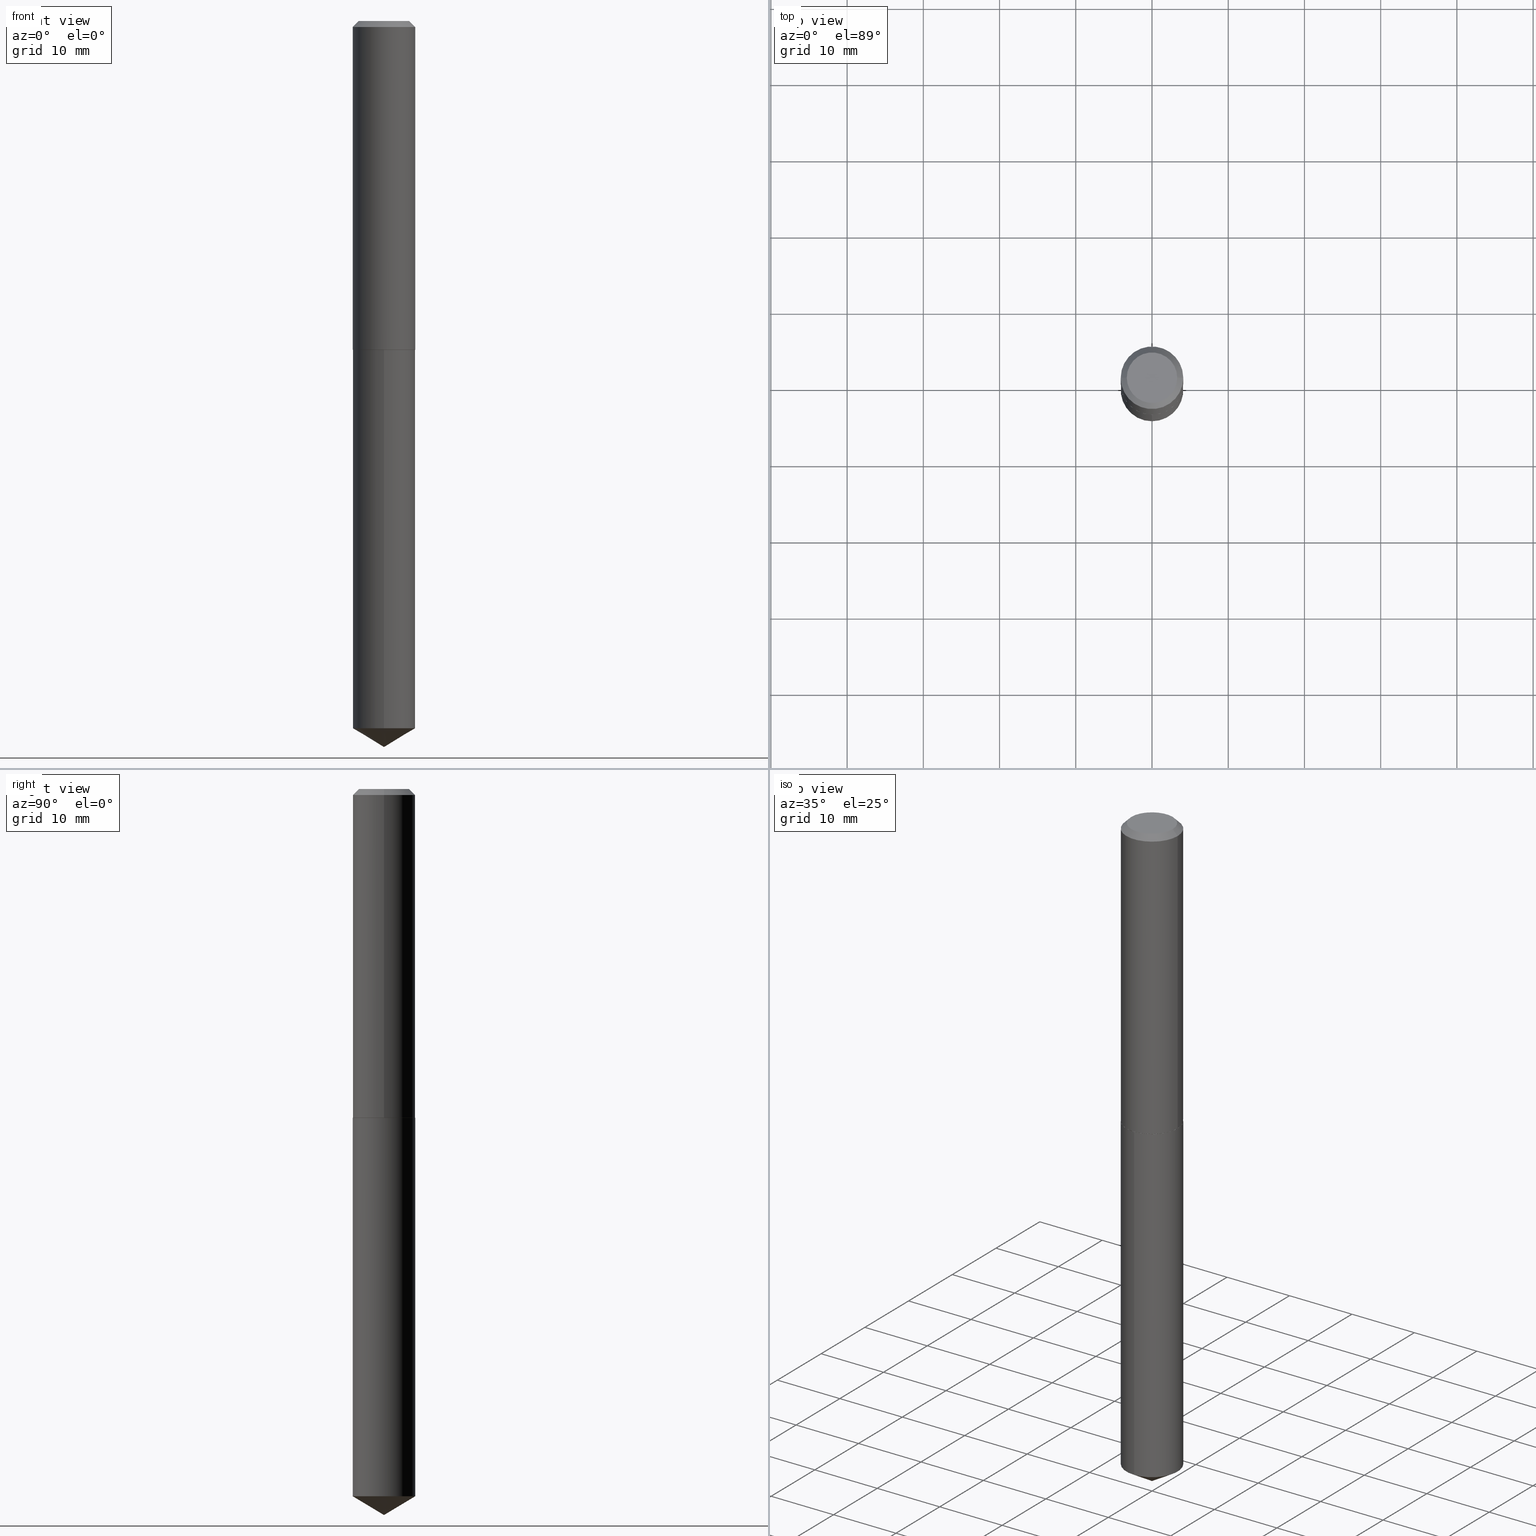
[diagram: canonical four-view strip — front | top / right | iso, engineering-drawing reading convention]
A machine part, canonical four-view strip (front | top / right | iso — engineering-drawing reading convention). The complete STEP part file that produces these views, byte-faithful:
ISO-10303-21;
HEADER;
FILE_DESCRIPTION (( 'STEP AP203' ),
    '1' );
FILE_NAME ('57191.STEP',
    '2024-04-22T23:42:38',
    ( '' ),
    ( '' ),
    'SwSTEP 2.0',
    'SolidWorks 2023',
    '' );
FILE_SCHEMA (( 'CONFIG_CONTROL_DESIGN' ));
ENDSEC;

DATA;
#1 = SHAPE_DEFINITION_REPRESENTATION ( #279, #150 ) ;
#2 = ORIENTED_EDGE ( 'NONE', *, *, #64, .F. ) ;
#3 = ORIENTED_EDGE ( 'NONE', *, *, #184, .F. ) ;
#4 = MANIFOLD_SOLID_BREP ( 'Body-Move/Copy2[2]', #203 ) ;
#5 = AXIS2_PLACEMENT_3D ( 'NONE', #255, #281, #40 ) ;
#6 = APPROVAL_DATE_TIME ( #209, #298 ) ;
#7 = AXIS2_PLACEMENT_3D ( 'NONE', #70, #312, #157 ) ;
#8 = ORIENTED_EDGE ( 'NONE', *, *, #114, .F. ) ;
#9 = FACE_OUTER_BOUND ( 'NONE', #304, .T. ) ;
#10 = CARTESIAN_POINT ( 'NONE',  ( -0.1615000000000001157, 1.147526518252562622E-15, -7.944080170761677510E-30 ) ) ;
#11 = DIRECTION ( 'NONE',  ( -2.445468806185136877E-29, 3.491481338843145188E-15, 1.000000000000000000 ) ) ;
#12 = VECTOR ( 'NONE', #191, 39.37007874015748143 ) ;
#13 = LINE ( 'NONE', #129, #115 ) ;
#14 = VERTEX_POINT ( 'NONE', #354 ) ;
#15 = DIRECTION ( 'NONE',  ( -2.445519026843938507E-29, 3.491409420001358985E-15, 1.000000000000000000 ) ) ;
#16 = DIRECTION ( 'NONE',  ( -6.982962677686266711E-15, -1.000000000000000000, 3.383093490605898500E-15 ) ) ;
#17 = CIRCLE ( 'NONE', #318, 0.1610000000000004206 ) ;
#18 = CIRCLE ( 'NONE', #23, 0.1615000000000000047 ) ;
#19 = DIRECTION ( 'NONE',  ( -2.445468806185136597E-29, 3.491481338843145583E-15, 1.000000000000000000 ) ) ;
#20 = DIRECTION ( 'NONE',  ( -2.445468806185136597E-29, 3.491481338843145583E-15, 1.000000000000000000 ) ) ;
#21 = APPROVAL ( #390, 'UNSPECIFIED' ) ;
#22 = ORIENTED_EDGE ( 'NONE', *, *, #34, .T. ) ;
#23 = AXIS2_PLACEMENT_3D ( 'NONE', #154, #37, #278 ) ;
#24 = DIRECTION ( 'NONE',  ( 2.438088387897960049E-29, -3.491481338843145188E-15, -1.000000000000000000 ) ) ;
#25 = CARTESIAN_POINT ( 'NONE',  ( 4.151183298499269552E-29, -5.926789572686240485E-15, -1.697500000000000231 ) ) ;
#26 = PERSON_AND_ORGANIZATION ( #267, #41 ) ;
#27 = CALENDAR_DATE ( 2024, 22, 4 ) ;
#28 = CC_DESIGN_APPROVAL ( #298, ( #366 ) ) ;
#29 = CC_DESIGN_SECURITY_CLASSIFICATION ( #206, ( #332 ) ) ;
#30 = CALENDAR_DATE ( 2024, 22, 4 ) ;
#31 = APPLICATION_PROTOCOL_DEFINITION ( 'international standard', 'config_control_design', 1994, #58 ) ;
#32 = EDGE_LOOP ( 'NONE', ( #96, #229, #189, #346 ) ) ;
#33 = ORIENTED_EDGE ( 'NONE', *, *, #216, .T. ) ;
#34 = EDGE_CURVE ( 'NONE', #14, #119, #177, .T. ) ;
#35 = AXIS2_PLACEMENT_3D ( 'NONE', #328, #377, #260 ) ;
#36 = ORIENTED_EDGE ( 'NONE', *, *, #363, .T. ) ;
#37 = DIRECTION ( 'NONE',  ( -2.445468806185136597E-29, 3.491481338843145583E-15, 1.000000000000000000 ) ) ;
#38 = EDGE_CURVE ( 'NONE', #198, #236, #169, .T. ) ;
#39 = FACE_OUTER_BOUND ( 'NONE', #160, .T. ) ;
#40 = DIRECTION ( 'NONE',  ( -6.982962677686269077E-15, -1.000000000000000000, 3.468864327941552799E-15 ) ) ;
#41 = ORGANIZATION ( 'UNSPECIFIED', 'UNSPECIFIED', '' ) ;
#42 = DIRECTION ( 'NONE',  ( -0.7071067811865454633, 2.468850131082235367E-15, -0.7071067811865495711 ) ) ;
#43 = EDGE_CURVE ( 'NONE', #119, #14, #256, .T. ) ;
#44 = ORIENTED_EDGE ( 'NONE', *, *, #43, .F. ) ;
#45 = LINE ( 'NONE', #159, #67 ) ;
#46 = EDGE_CURVE ( 'NONE', #14, #103, #117, .T. ) ;
#47 = CARTESIAN_POINT ( 'NONE',  ( 8.933300379661556550E-29, -1.275410459949947591E-14, -3.652961010027050204 ) ) ;
#48 = CONICAL_SURFACE ( 'NONE', #232, 0.1615000000000001990, 0.7853981633976190313 ) ;
#49 = FACE_OUTER_BOUND ( 'NONE', #231, .T. ) ;
#50 = DIRECTION ( 'NONE',  ( -2.445468806185136597E-29, 3.491481338843145583E-15, 1.000000000000000000 ) ) ;
#51 = EDGE_LOOP ( 'NONE', ( #122, #22 ) ) ;
#52 = CYLINDRICAL_SURFACE ( 'NONE', #313, 0.1615000000000001157 ) ;
#53 = CIRCLE ( 'NONE', #245, 0.1615000000000000047 ) ;
#54 = FACE_OUTER_BOUND ( 'NONE', #137, .T. ) ;
#55 = APPROVAL_PERSON_ORGANIZATION ( #26, #139, #268 ) ;
#56 = COORDINATED_UNIVERSAL_TIME_OFFSET ( 5, 0, .BEHIND. ) ;
#57 = ADVANCED_FACE ( 'NONE', ( #54 ), #48, .T. ) ;
#58 = APPLICATION_CONTEXT ( 'configuration controlled 3d designs of mechanical parts and assemblies' ) ;
#59 = DATE_AND_TIME ( #30, #144 ) ;
#60 = PERSON_AND_ORGANIZATION ( #267, #41 ) ;
#61 =( NAMED_UNIT ( * ) PLANE_ANGLE_UNIT ( ) SI_UNIT ( $, .RADIAN. ) );
#62 = CARTESIAN_POINT ( 'NONE',  ( 4.152406032902361233E-29, -5.928535313355660411E-15, -1.697999999999999732 ) ) ;
#63 = DATE_AND_TIME ( #297, #80 ) ;
#64 = EDGE_CURVE ( 'NONE', #179, #234, #17, .T. ) ;
#65 = VERTEX_POINT ( 'NONE', #185 ) ;
#66 = DIRECTION ( 'NONE',  ( -5.985567269335963368E-15, -0.8571673007021132218, 0.5150380749100526012 ) ) ;
#67 = VECTOR ( 'NONE', #316, 39.37007874015748143 ) ;
#68 = DIRECTION ( 'NONE',  ( -2.445519026843938507E-29, 3.491409420001358590E-15, 1.000000000000000000 ) ) ;
#69 = DIRECTION ( 'NONE',  ( 6.982962677686265922E-15, 1.000000000000000000, -3.491409420001358590E-15 ) ) ;
#70 = CARTESIAN_POINT ( 'NONE',  ( 4.152406032902361793E-29, -5.928535313355661989E-15, -1.697999999999999954 ) ) ;
#71 = ADVANCED_FACE ( 'NONE', ( #125 ), #249, .T. ) ;
#72 = CYLINDRICAL_SURFACE ( 'NONE', #301, 0.1615000000000000047 ) ;
#73 = DIMENSIONAL_EXPONENTS ( 1.000000000000000000, 0.000000000000000000, 0.000000000000000000, 0.000000000000000000, 0.000000000000000000, 0.000000000000000000, 0.000000000000000000 ) ;
#74 = CARTESIAN_POINT ( 'NONE',  ( -8.710966557141303631E-28, 1.243641563363826050E-13, 35.62007874015748143 ) ) ;
#75 = PRODUCT_RELATED_PRODUCT_CATEGORY ( 'detail', '', ( #339 ) ) ;
#76 = ORIENTED_EDGE ( 'NONE', *, *, #376, .F. ) ;
#77 = DIRECTION ( 'NONE',  ( -1.000000000000000000, 6.982962677686265922E-15, -4.876176775795935793E-29 ) ) ;
#78 = ORIENTED_EDGE ( 'NONE', *, *, #158, .T. ) ;
#79 = CARTESIAN_POINT ( 'NONE',  ( 0.1610000000000004206, -7.052792304463152097E-15, -1.697999999999999732 ) ) ;
#80 = LOCAL_TIME ( 19, 42, 38.00000000000000000, #388 ) ;
#81 =( CONVERSION_BASED_UNIT ( 'INCH', #351 ) LENGTH_UNIT ( ) NAMED_UNIT ( #73 ) );
#82 = ORIENTED_EDGE ( 'NONE', *, *, #363, .F. ) ;
#83 = CARTESIAN_POINT ( 'NONE',  ( 7.642090019328598283E-31, -1.091087918388489651E-16, -0.03125000000000019429 ) ) ;
#84 = EDGE_LOOP ( 'NONE', ( #277, #319 ) ) ;
#85 = DIRECTION ( 'NONE',  ( -2.445468806185136597E-29, 3.491481338843145583E-15, 1.000000000000000000 ) ) ;
#86 = CIRCLE ( 'NONE', #251, 0.1615000000000000047 ) ;
#87 = LOCAL_TIME ( 19, 42, 38.00000000000000000, #239 ) ;
#88 = PERSON_AND_ORGANIZATION ( #267, #41 ) ;
#89 = APPROVAL_ROLE ( '' ) ;
#90 = ORIENTED_EDGE ( 'NONE', *, *, #216, .F. ) ;
#91 = VECTOR ( 'NONE', #325, 39.37007874015748143 ) ;
#92 = ADVANCED_FACE ( 'NONE', ( #309 ), #367, .F. ) ;
#93 = COORDINATED_UNIVERSAL_TIME_OFFSET ( 5, 0, .BEHIND. ) ;
#94 = ORIENTED_EDGE ( 'NONE', *, *, #38, .F. ) ;
#95 = PERSON_AND_ORGANIZATION ( #267, #41 ) ;
#96 = ORIENTED_EDGE ( 'NONE', *, *, #34, .F. ) ;
#97 = DIRECTION ( 'NONE',  ( -6.982962677686266711E-15, -1.000000000000000000, 3.383093490605898500E-15 ) ) ;
#98 = EDGE_CURVE ( 'NONE', #236, #335, #190, .T. ) ;
#99 = AXIS2_PLACEMENT_3D ( 'NONE', #380, #85, #347 ) ;
#100 = DIRECTION ( 'NONE',  ( -2.445468806185136597E-29, 3.491481338843145583E-15, 1.000000000000000000 ) ) ;
#101 = CARTESIAN_POINT ( 'NONE',  ( 9.170696350664768772E-29, -1.309278532500509639E-14, -3.750000000000000000 ) ) ;
#102 = DIRECTION ( 'NONE',  ( 0.7071067811866682540, -2.468850131083521605E-15, 0.7071067811864267805 ) ) ;
#103 = VERTEX_POINT ( 'NONE', #345 ) ;
#104 = EDGE_CURVE ( 'NONE', #119, #65, #186, .T. ) ;
#105 = CIRCLE ( 'NONE', #126, 0.1615000000000000047 ) ;
#106 = CARTESIAN_POINT ( 'NONE',  ( 4.152406032902361793E-29, -5.928535313355661989E-15, -1.697999999999999954 ) ) ;
#107 = CARTESIAN_POINT ( 'NONE',  ( 8.933300379661556550E-29, -1.275410459949947591E-14, -3.652961010027050204 ) ) ;
#108 = CARTESIAN_POINT ( 'NONE',  ( 1.147526518252603051E-15, 0.1614999999999940650, -1.698000000000000620 ) ) ;
#109 = LOCAL_TIME ( 19, 42, 38.00000000000000000, #56 ) ;
#110 = ORIENTED_EDGE ( 'NONE', *, *, #64, .T. ) ;
#111 = CARTESIAN_POINT ( 'NONE',  ( -1.127748472446242790E-15, -0.1615000000000127445, -3.652961010027049760 ) ) ;
#112 = ORIENTED_EDGE ( 'NONE', *, *, #348, .T. ) ;
#113 = DIRECTION ( 'NONE',  ( -1.000000000000000000, 6.982962677686266711E-15, 0.000000000000000000 ) ) ;
#114 = EDGE_CURVE ( 'NONE', #274, #335, #155, .T. ) ;
#115 = VECTOR ( 'NONE', #102, 39.37007874015748143 ) ;
#116 = PERSON_AND_ORGANIZATION ( #267, #41 ) ;
#117 = LINE ( 'NONE', #242, #357 ) ;
#118 = APPROVAL_DATE_TIME ( #59, #21 ) ;
#119 = VERTEX_POINT ( 'NONE', #368 ) ;
#120 = CONICAL_SURFACE ( 'NONE', #327, 65.52281426576921319, 1.029744258676659863 ) ;
#121 = DIRECTION ( 'NONE',  ( 0.000000000000000000, 0.000000000000000000, 1.000000000000000000 ) ) ;
#122 = ORIENTED_EDGE ( 'NONE', *, *, #43, .T. ) ;
#123 = PLANE ( 'NONE',  #171 ) ;
#124 = CC_DESIGN_DATE_AND_TIME_ASSIGNMENT ( #329, #359, ( #366 ) ) ;
#125 = FACE_OUTER_BOUND ( 'NONE', #132, .T. ) ;
#126 = AXIS2_PLACEMENT_3D ( 'NONE', #83, #261, #292 ) ;
#127 = DIRECTION ( 'NONE',  ( -2.445519026843938507E-29, 3.491409420001358985E-15, 1.000000000000000000 ) ) ;
#128 = ADVANCED_FACE ( 'NONE', ( #39 ), #120, .T. ) ;
#129 = CARTESIAN_POINT ( 'NONE',  ( 0.1615000000000001990, -7.054538045132573600E-15, -1.697500000000000231 ) ) ;
#130 = MANIFOLD_SOLID_BREP ( 'Body-Move/Copy2[1]', #224 ) ;
#131 = DIRECTION ( 'NONE',  ( -6.982962677686269077E-15, -1.000000000000000000, 3.468864327941552799E-15 ) ) ;
#132 = EDGE_LOOP ( 'NONE', ( #3, #112, #146, #294 ) ) ;
#133 = LINE ( 'NONE', #350, #307 ) ;
#134 = CARTESIAN_POINT ( 'NONE',  ( 7.642090019328598283E-31, -1.091087918388489651E-16, -0.03125000000000019429 ) ) ;
#135 = FACE_OUTER_BOUND ( 'NONE', #362, .T. ) ;
#136 = CIRCLE ( 'NONE', #99, 0.1610000000000004206 ) ;
#137 = EDGE_LOOP ( 'NONE', ( #352, #110, #262, #284 ) ) ;
#138 = CARTESIAN_POINT ( 'NONE',  ( 4.151183298499269552E-29, -5.926789572686240485E-15, -1.697500000000000231 ) ) ;
#139 = APPROVAL ( #140, 'UNSPECIFIED' ) ;
#140 = APPROVAL_STATUS ( 'not_yet_approved' ) ;
#141 = DATE_AND_TIME ( #299, #87 ) ;
#142 = AXIS2_PLACEMENT_3D ( 'NONE', #106, #341, #69 ) ;
#143 = APPROVAL_PERSON_ORGANIZATION ( #88, #298, #89 ) ;
#144 = LOCAL_TIME ( 19, 42, 38.00000000000000000, #273 ) ;
#145 = DIRECTION ( 'NONE',  ( -2.445468806185136597E-29, 3.491481338843145583E-15, 1.000000000000000000 ) ) ;
#146 = ORIENTED_EDGE ( 'NONE', *, *, #379, .T. ) ;
#147 = CARTESIAN_POINT ( 'NONE',  ( 0.000000000000000000, 0.000000000000000000, 0.000000000000000000 ) ) ;
#148 = EDGE_LOOP ( 'NONE', ( #82, #382, #210, #8 ) ) ;
#149 = AXIS2_PLACEMENT_3D ( 'NONE', #264, #24, #77 ) ;
#150 = ADVANCED_BREP_SHAPE_REPRESENTATION ( '57191', ( #130, #4, #383 ), #220 ) ;
#151 = EDGE_LOOP ( 'NONE', ( #322, #36, #265, #287 ) ) ;
#152 = CC_DESIGN_PERSON_AND_ORGANIZATION_ASSIGNMENT ( #270, #334, ( #332 ) ) ;
#153 = DIRECTION ( 'NONE',  ( -2.438088387897960049E-29, 3.491481338843145188E-15, 1.000000000000000000 ) ) ;
#154 = CARTESIAN_POINT ( 'NONE',  ( 7.642090019328598283E-31, -1.091087918388489651E-16, -0.03125000000000019429 ) ) ;
#155 = CIRCLE ( 'NONE', #381, 0.1615000000000000047 ) ;
#156 = APPROVAL_PERSON_ORGANIZATION ( #240, #21, #243 ) ;
#157 = DIRECTION ( 'NONE',  ( -6.982962677686266711E-15, -1.000000000000000000, 3.383093490605898500E-15 ) ) ;
#158 = EDGE_CURVE ( 'NONE', #179, #196, #45, .T. ) ;
#159 = CARTESIAN_POINT ( 'NONE',  ( -0.1615000000000001990, -4.779263054433677272E-15, -1.697500000000000231 ) ) ;
#160 = EDGE_LOOP ( 'NONE', ( #90, #271, #173 ) ) ;
#161 = CARTESIAN_POINT ( 'NONE',  ( 1.147526518252651172E-15, 0.1614999999999872649, -3.652961010027051092 ) ) ;
#162 = ORIENTED_EDGE ( 'NONE', *, *, #310, .T. ) ;
#163 = AXIS2_PLACEMENT_3D ( 'NONE', #248, #365, #336 ) ;
#164 = VECTOR ( 'NONE', #11, 39.37007874015748143 ) ;
#165 =( LENGTH_UNIT ( ) NAMED_UNIT ( * ) SI_UNIT ( $, .METRE. ) );
#166 = EDGE_CURVE ( 'NONE', #103, #65, #18, .T. ) ;
#167 = DIRECTION ( 'NONE',  ( 1.000000000000000000, -6.982962677686266711E-15, 0.000000000000000000 ) ) ;
#168 = CARTESIAN_POINT ( 'NONE',  ( 0.1615000000000001990, -7.054538045132573600E-15, -1.697500000000000231 ) ) ;
#169 = LINE ( 'NONE', #202, #219 ) ;
#170 = CARTESIAN_POINT ( 'NONE',  ( -1.127748472446290517E-15, -0.1615000000000059444, -1.697999999999999510 ) ) ;
#171 = AXIS2_PLACEMENT_3D ( 'NONE', #337, #153, #280 ) ;
#172 = ADVANCED_FACE ( 'NONE', ( #9 ), #263, .T. ) ;
#173 = ORIENTED_EDGE ( 'NONE', *, *, #269, .F. ) ;
#174 = DIRECTION ( 'NONE',  ( 1.000000000000000000, 0.000000000000000000, 0.000000000000000000 ) ) ;
#175 =( NAMED_UNIT ( * ) SI_UNIT ( $, .STERADIAN. ) SOLID_ANGLE_UNIT ( ) );
#176 = PERSON_AND_ORGANIZATION_ROLE ( 'classification_officer' ) ;
#177 = CIRCLE ( 'NONE', #163, 0.1302500000000000047 ) ;
#178 = AXIS2_PLACEMENT_3D ( 'NONE', #321, #353, #323 ) ;
#179 = VERTEX_POINT ( 'NONE', #283 ) ;
#180 = DATE_TIME_ROLE ( 'classification_date' ) ;
#181 = EDGE_LOOP ( 'NONE', ( #289, #2 ) ) ;
#182 = ADVANCED_FACE ( 'NONE', ( #218 ), #123, .F. ) ;
#183 = DIRECTION ( 'NONE',  ( 0.7071067811865454633, -7.319954787623248157E-15, -0.7071067811865495711 ) ) ;
#184 = EDGE_CURVE ( 'NONE', #196, #65, #372, .T. ) ;
#185 = CARTESIAN_POINT ( 'NONE',  ( -0.1615000000000000047, -1.870422664009981185E-15, -0.03125000000000019429 ) ) ;
#186 = LINE ( 'NONE', #187, #331 ) ;
#187 = CARTESIAN_POINT ( 'NONE',  ( -0.1615000000000000047, 1.018639680607483028E-15, -0.03125000000000019429 ) ) ;
#188 = LINE ( 'NONE', #223, #91 ) ;
#189 = ORIENTED_EDGE ( 'NONE', *, *, #166, .T. ) ;
#190 = LINE ( 'NONE', #227, #282 ) ;
#191 = DIRECTION ( 'NONE',  ( -2.445519026843938507E-29, 3.491409420001358590E-15, 1.000000000000000000 ) ) ;
#192 = ADVANCED_FACE ( 'NONE', ( #285 ), #72, .T. ) ;
#193 = ORIENTED_EDGE ( 'NONE', *, *, #184, .T. ) ;
#194 = AXIS2_PLACEMENT_3D ( 'NONE', #373, #100, #221 ) ;
#195 = CARTESIAN_POINT ( 'NONE',  ( 0.000000000000000000, 0.000000000000000000, 0.000000000000000000 ) ) ;
#196 = VERTEX_POINT ( 'NONE', #371 ) ;
#197 = FACE_OUTER_BOUND ( 'NONE', #51, .T. ) ;
#198 = VERTEX_POINT ( 'NONE', #101 ) ;
#199 = UNCERTAINTY_MEASURE_WITH_UNIT (LENGTH_MEASURE( 1.000000000000000082E-05 ), #81, 'distance_accuracy_value', 'NONE');
#200 = ADVANCED_FACE ( 'NONE', ( #222 ), #342, .T. ) ;
#201 = DIRECTION ( 'NONE',  ( -6.982962677686266711E-15, -1.000000000000000000, 3.383093490605898500E-15 ) ) ;
#202 = CARTESIAN_POINT ( 'NONE',  ( 9.170525801307478657E-29, -1.309302956139180441E-14, -3.750000000000000000 ) ) ;
#203 = CLOSED_SHELL ( 'NONE', ( #308, #241, #386, #182, #57, #71, #246, #315 ) ) ;
#204 = DIRECTION ( 'NONE',  ( 1.000000000000000000, -6.982962677686265922E-15, 4.876176775795935232E-29 ) ) ;
#205 = CONICAL_SURFACE ( 'NONE', #178, 0.1615000000000000047, 0.7853981633974453924 ) ;
#206 = SECURITY_CLASSIFICATION ( '', '', #276 ) ;
#207 = CALENDAR_DATE ( 2024, 22, 4 ) ;
#208 = APPLICATION_CONTEXT ( 'configuration controlled 3d designs of mechanical parts and assemblies' ) ;
#209 = DATE_AND_TIME ( #27, #369 ) ;
#210 = ORIENTED_EDGE ( 'NONE', *, *, #98, .T. ) ;
#211 = CONICAL_SURFACE ( 'NONE', #389, 0.1615000000000001990, 0.7853981633976190313 ) ;
#212 = EDGE_CURVE ( 'NONE', #234, #349, #13, .T. ) ;
#213 = PERSON_AND_ORGANIZATION ( #267, #41 ) ;
#214 = ORIENTED_EDGE ( 'NONE', *, *, #340, .F. ) ;
#215 = PERSON_AND_ORGANIZATION_ROLE ( 'creator' ) ;
#216 = EDGE_CURVE ( 'NONE', #198, #306, #188, .T. ) ;
#217 = ORIENTED_EDGE ( 'NONE', *, *, #104, .T. ) ;
#218 = FACE_OUTER_BOUND ( 'NONE', #181, .T. ) ;
#219 = VECTOR ( 'NONE', #66, 39.37007874015748143 ) ;
#220 =( GEOMETRIC_REPRESENTATION_CONTEXT ( 3 ) GLOBAL_UNCERTAINTY_ASSIGNED_CONTEXT ( ( #199 ) ) GLOBAL_UNIT_ASSIGNED_CONTEXT ( ( #81, #61, #175 ) ) REPRESENTATION_CONTEXT ( 'NONE', 'WORKASPACE' ) );
#221 = DIRECTION ( 'NONE',  ( 1.000000000000000000, -6.982962677686265922E-15, 4.876176775795935232E-29 ) ) ;
#222 = FACE_OUTER_BOUND ( 'NONE', #148, .T. ) ;
#223 = CARTESIAN_POINT ( 'NONE',  ( 9.170697846181315555E-29, -1.309278532500509955E-14, -3.750000000000000000 ) ) ;
#224 = CLOSED_SHELL ( 'NONE', ( #192, #172, #128, #200, #92 ) ) ;
#225 = ORIENTED_EDGE ( 'NONE', *, *, #212, .F. ) ;
#226 = AXIS2_PLACEMENT_3D ( 'NONE', #134, #356, #113 ) ;
#227 = CARTESIAN_POINT ( 'NONE',  ( -1.127748472446290517E-15, -0.1615000000000059444, -1.697999999999999510 ) ) ;
#228 = CC_DESIGN_PERSON_AND_ORGANIZATION_ASSIGNMENT ( #213, #330, ( #332 ) ) ;
#229 = ORIENTED_EDGE ( 'NONE', *, *, #46, .T. ) ;
#230 = DIRECTION ( 'NONE',  ( 1.000000000000000000, -6.982962677686266711E-15, 0.000000000000000000 ) ) ;
#231 = EDGE_LOOP ( 'NONE', ( #324, #78, #214, #225 ) ) ;
#232 = AXIS2_PLACEMENT_3D ( 'NONE', #25, #145, #360 ) ;
#233 = AXIS2_PLACEMENT_3D ( 'NONE', #378, #50, #290 ) ;
#234 = VERTEX_POINT ( 'NONE', #79 ) ;
#235 = DIRECTION ( 'NONE',  ( -2.445519026843938507E-29, 3.491409420001358985E-15, 1.000000000000000000 ) ) ;
#236 = VERTEX_POINT ( 'NONE', #111 ) ;
#237 = DESIGN_CONTEXT ( 'detailed design', #208, 'design' ) ;
#238 = PLANE ( 'NONE',  #149 ) ;
#239 = COORDINATED_UNIVERSAL_TIME_OFFSET ( 5, 0, .BEHIND. ) ;
#240 = PERSON_AND_ORGANIZATION ( #267, #41 ) ;
#241 = ADVANCED_FACE ( 'NONE', ( #259 ), #52, .T. ) ;
#242 = CARTESIAN_POINT ( 'NONE',  ( 0.1615000000000000047, -1.217079218478951328E-15, -0.03125000000000019429 ) ) ;
#243 = APPROVAL_ROLE ( '' ) ;
#244 = ORIENTED_EDGE ( 'NONE', *, *, #379, .F. ) ;
#245 = AXIS2_PLACEMENT_3D ( 'NONE', #107, #235, #201 ) ;
#246 = ADVANCED_FACE ( 'NONE', ( #135 ), #320, .T. ) ;
#247 = MECHANICAL_CONTEXT ( 'NONE', #58, 'mechanical' ) ;
#248 = CARTESIAN_POINT ( 'NONE',  ( -1.048192441068269648E-47, 1.496541006063948366E-33, 4.286263797015758030E-19 ) ) ;
#249 = CYLINDRICAL_SURFACE ( 'NONE', #194, 0.1615000000000001157 ) ;
#250 = DIRECTION ( 'NONE',  ( 1.000000000000000000, -6.982962677686266711E-15, 0.000000000000000000 ) ) ;
#251 = AXIS2_PLACEMENT_3D ( 'NONE', #47, #387, #16 ) ;
#252 = DIRECTION ( 'NONE',  ( -6.982962677686266711E-15, -1.000000000000000000, 3.383093490605898500E-15 ) ) ;
#253 = DIRECTION ( 'NONE',  ( -2.445519026843938507E-29, 3.491409420001358985E-15, 1.000000000000000000 ) ) ;
#254 = ORIENTED_EDGE ( 'NONE', *, *, #166, .F. ) ;
#255 = CARTESIAN_POINT ( 'NONE',  ( -8.710966557141303631E-28, 1.243641563363826050E-13, 35.62007874015748143 ) ) ;
#256 = CIRCLE ( 'NONE', #305, 0.1302500000000000047 ) ;
#257 = AXIS2_PLACEMENT_3D ( 'NONE', #138, #266, #167 ) ;
#258 = EDGE_CURVE ( 'NONE', #335, #274, #338, .T. ) ;
#259 = FACE_OUTER_BOUND ( 'NONE', #291, .T. ) ;
#260 = DIRECTION ( 'NONE',  ( -6.982962677686266711E-15, -1.000000000000000000, 3.383093490605898500E-15 ) ) ;
#261 = DIRECTION ( 'NONE',  ( -2.445468806185136597E-29, 3.491481338843145583E-15, 1.000000000000000000 ) ) ;
#262 = ORIENTED_EDGE ( 'NONE', *, *, #212, .T. ) ;
#263 = CONICAL_SURFACE ( 'NONE', #5, 65.52281426576921319, 1.029744258676659863 ) ;
#264 = CARTESIAN_POINT ( 'NONE',  ( -5.240962205341348242E-48, 7.482705030319741831E-34, 2.143131898507879015E-19 ) ) ;
#265 = ORIENTED_EDGE ( 'NONE', *, *, #258, .F. ) ;
#266 = DIRECTION ( 'NONE',  ( -2.445468806185136597E-29, 3.491481338843145583E-15, 1.000000000000000000 ) ) ;
#267 = PERSON ( 'UNSPECIFIED', 'UNSPECIFIED', 'UNSPECIFIED', ('UNSPECIFIED'), ('UNSPECIFIED'), ('UNSPECIFIED') ) ;
#268 = APPROVAL_ROLE ( '' ) ;
#269 = EDGE_CURVE ( 'NONE', #306, #236, #53, .T. ) ;
#270 = PERSON_AND_ORGANIZATION ( #267, #41 ) ;
#271 = ORIENTED_EDGE ( 'NONE', *, *, #38, .T. ) ;
#272 = EDGE_CURVE ( 'NONE', #234, #179, #136, .T. ) ;
#273 = COORDINATED_UNIVERSAL_TIME_OFFSET ( 5, 0, .BEHIND. ) ;
#274 = VERTEX_POINT ( 'NONE', #295 ) ;
#275 = CC_DESIGN_DATE_AND_TIME_ASSIGNMENT ( #63, #180, ( #206 ) ) ;
#276 = SECURITY_CLASSIFICATION_LEVEL ( 'unclassified' ) ;
#277 = ORIENTED_EDGE ( 'NONE', *, *, #258, .T. ) ;
#278 = DIRECTION ( 'NONE',  ( 1.000000000000000000, -6.982962677686266711E-15, 0.000000000000000000 ) ) ;
#279 = PRODUCT_DEFINITION_SHAPE ( 'NONE', 'NONE',  #366 ) ;
#280 = DIRECTION ( 'NONE',  ( 1.000000000000000000, -6.982962677686265922E-15, 4.876176775795935793E-29 ) ) ;
#281 = DIRECTION ( 'NONE',  ( -2.445519026843938507E-29, 3.491409420001358985E-15, 1.000000000000000000 ) ) ;
#282 = VECTOR ( 'NONE', #68, 39.37007874015748143 ) ;
#283 = CARTESIAN_POINT ( 'NONE',  ( -0.1610000000000004206, -4.781912281607787684E-15, -1.697999999999999732 ) ) ;
#284 = ORIENTED_EDGE ( 'NONE', *, *, #348, .F. ) ;
#285 = FACE_OUTER_BOUND ( 'NONE', #151, .T. ) ;
#286 = CC_DESIGN_PERSON_AND_ORGANIZATION_ASSIGNMENT ( #95, #215, ( #366 ) ) ;
#287 = ORIENTED_EDGE ( 'NONE', *, *, #98, .F. ) ;
#288 = LINE ( 'NONE', #108, #12 ) ;
#289 = ORIENTED_EDGE ( 'NONE', *, *, #272, .F. ) ;
#290 = DIRECTION ( 'NONE',  ( 1.000000000000000000, -6.982962677686266711E-15, 0.000000000000000000 ) ) ;
#291 = EDGE_LOOP ( 'NONE', ( #302, #193, #254, #244 ) ) ;
#292 = DIRECTION ( 'NONE',  ( 1.000000000000000000, -6.982962677686266711E-15, 0.000000000000000000 ) ) ;
#293 = CARTESIAN_POINT ( 'NONE',  ( 4.151183298499269552E-29, -5.926789572686240485E-15, -1.697500000000000231 ) ) ;
#294 = ORIENTED_EDGE ( 'NONE', *, *, #310, .F. ) ;
#295 = CARTESIAN_POINT ( 'NONE',  ( 1.147526518252651172E-15, 0.1614999999999940650, -1.698000000000000620 ) ) ;
#296 = DIRECTION ( 'NONE',  ( -2.445468806185136597E-29, 3.491481338843145583E-15, 1.000000000000000000 ) ) ;
#297 = CALENDAR_DATE ( 2024, 22, 4 ) ;
#298 = APPROVAL ( #364, 'UNSPECIFIED' ) ;
#299 = CALENDAR_DATE ( 2024, 22, 4 ) ;
#300 = APPROVAL_DATE_TIME ( #141, #139 ) ;
#301 = AXIS2_PLACEMENT_3D ( 'NONE', #344, #127, #252 ) ;
#302 = ORIENTED_EDGE ( 'NONE', *, *, #340, .T. ) ;
#303 = PERSON_AND_ORGANIZATION_ROLE ( 'design_owner' ) ;
#304 = EDGE_LOOP ( 'NONE', ( #94, #33, #76 ) ) ;
#305 = AXIS2_PLACEMENT_3D ( 'NONE', #333, #296, #326 ) ;
#306 = VERTEX_POINT ( 'NONE', #161 ) ;
#307 = VECTOR ( 'NONE', #317, 39.37007874015748143 ) ;
#308 = ADVANCED_FACE ( 'NONE', ( #384 ), #205, .T. ) ;
#309 = FACE_OUTER_BOUND ( 'NONE', #84, .T. ) ;
#310 = EDGE_CURVE ( 'NONE', #65, #103, #105, .T. ) ;
#311 = CARTESIAN_POINT ( 'NONE',  ( 4.152406032902361793E-29, -5.928535313355661989E-15, -1.697999999999999954 ) ) ;
#312 = DIRECTION ( 'NONE',  ( -2.445519026843938507E-29, 3.491409420001358985E-15, 1.000000000000000000 ) ) ;
#313 = AXIS2_PLACEMENT_3D ( 'NONE', #195, #19, #204 ) ;
#314 = DIRECTION ( 'NONE',  ( -2.445468806185136597E-29, 3.491481338843145583E-15, 1.000000000000000000 ) ) ;
#315 = ADVANCED_FACE ( 'NONE', ( #197 ), #238, .F. ) ;
#316 = DIRECTION ( 'NONE',  ( -0.7071067811866682540, 7.493145998870789611E-15, 0.7071067811864267805 ) ) ;
#317 = DIRECTION ( 'NONE',  ( -2.445468806185136877E-29, 3.491481338843145188E-15, 1.000000000000000000 ) ) ;
#318 = AXIS2_PLACEMENT_3D ( 'NONE', #62, #314, #250 ) ;
#319 = ORIENTED_EDGE ( 'NONE', *, *, #114, .T. ) ;
#320 = CONICAL_SURFACE ( 'NONE', #226, 0.1615000000000000047, 0.7853981633974453924 ) ;
#321 = CARTESIAN_POINT ( 'NONE',  ( 7.642090019328598283E-31, -1.091087918388489651E-16, -0.03125000000000019429 ) ) ;
#322 = ORIENTED_EDGE ( 'NONE', *, *, #376, .T. ) ;
#323 = DIRECTION ( 'NONE',  ( -1.000000000000000000, 6.982962677686266711E-15, 0.000000000000000000 ) ) ;
#324 = ORIENTED_EDGE ( 'NONE', *, *, #272, .T. ) ;
#325 = DIRECTION ( 'NONE',  ( 6.090539988449799735E-15, 0.8571673007021168855, 0.5150380749100466060 ) ) ;
#326 = DIRECTION ( 'NONE',  ( 1.000000000000000000, -6.982962677686266711E-15, 4.876168088827840652E-29 ) ) ;
#327 = AXIS2_PLACEMENT_3D ( 'NONE', #74, #253, #131 ) ;
#328 = CARTESIAN_POINT ( 'NONE',  ( 4.152406032902361793E-29, -5.928535313355661989E-15, -1.697999999999999954 ) ) ;
#329 = DATE_AND_TIME ( #207, #109 ) ;
#330 = PERSON_AND_ORGANIZATION_ROLE ( 'creator' ) ;
#331 = VECTOR ( 'NONE', #42, 39.37007874015748143 ) ;
#332 = PRODUCT_DEFINITION_FORMATION_WITH_SPECIFIED_SOURCE ( 'ANY', '', #339, .NOT_KNOWN. ) ;
#333 = CARTESIAN_POINT ( 'NONE',  ( -1.048192441068269648E-47, 1.496541006063948366E-33, 4.286263797015758030E-19 ) ) ;
#334 = PERSON_AND_ORGANIZATION_ROLE ( 'design_supplier' ) ;
#335 = VERTEX_POINT ( 'NONE', #170 ) ;
#336 = DIRECTION ( 'NONE',  ( 1.000000000000000000, -6.982962677686266711E-15, 4.876168088827840652E-29 ) ) ;
#337 = CARTESIAN_POINT ( 'NONE',  ( 6.164313772176686051E-29, -3.047368920037702278E-15, -1.697999999999999732 ) ) ;
#338 = CIRCLE ( 'NONE', #35, 0.1615000000000000047 ) ;
#339 = PRODUCT ( '57191', '57191', '', ( #247 ) ) ;
#340 = EDGE_CURVE ( 'NONE', #349, #196, #374, .T. ) ;
#341 = DIRECTION ( 'NONE',  ( 2.445519026843938507E-29, -3.491409420001358590E-15, -1.000000000000000000 ) ) ;
#342 = CYLINDRICAL_SURFACE ( 'NONE', #7, 0.1615000000000000047 ) ;
#343 = CC_DESIGN_PERSON_AND_ORGANIZATION_ASSIGNMENT ( #60, #176, ( #206 ) ) ;
#344 = CARTESIAN_POINT ( 'NONE',  ( 4.152406032902361793E-29, -5.928535313355661989E-15, -1.697999999999999954 ) ) ;
#345 = CARTESIAN_POINT ( 'NONE',  ( 0.1615000000000000047, -1.236857264285181230E-15, -0.03125000000000019429 ) ) ;
#346 = ORIENTED_EDGE ( 'NONE', *, *, #104, .F. ) ;
#347 = DIRECTION ( 'NONE',  ( 1.000000000000000000, -6.982962677686266711E-15, 0.000000000000000000 ) ) ;
#348 = EDGE_CURVE ( 'NONE', #196, #349, #358, .T. ) ;
#349 = VERTEX_POINT ( 'NONE', #168 ) ;
#350 = CARTESIAN_POINT ( 'NONE',  ( 0.1615000000000001157, -1.127748472446332721E-15, 7.875025492910441462E-30 ) ) ;
#351 = LENGTH_MEASURE_WITH_UNIT ( LENGTH_MEASURE( 0.02539999999999999897 ), #165 );
#352 = ORIENTED_EDGE ( 'NONE', *, *, #158, .F. ) ;
#353 = DIRECTION ( 'NONE',  ( 2.445468806185136597E-29, -3.491481338843145583E-15, -1.000000000000000000 ) ) ;
#354 = CARTESIAN_POINT ( 'NONE',  ( 0.1302500000000000047, -1.055329541344346597E-15, 4.286263797084456915E-19 ) ) ;
#355 = CC_DESIGN_PERSON_AND_ORGANIZATION_ASSIGNMENT ( #116, #303, ( #339 ) ) ;
#356 = DIRECTION ( 'NONE',  ( 2.445468806185136597E-29, -3.491481338843145583E-15, -1.000000000000000000 ) ) ;
#357 = VECTOR ( 'NONE', #183, 39.37007874015748143 ) ;
#358 = CIRCLE ( 'NONE', #233, 0.1615000000000001990 ) ;
#359 = DATE_TIME_ROLE ( 'creation_date' ) ;
#360 = DIRECTION ( 'NONE',  ( 1.000000000000000000, -6.982962677686266711E-15, 0.000000000000000000 ) ) ;
#361 = APPLICATION_PROTOCOL_DEFINITION ( 'international standard', 'config_control_design', 1994, #208 ) ;
#362 = EDGE_LOOP ( 'NONE', ( #385, #44, #217, #162 ) ) ;
#363 = EDGE_CURVE ( 'NONE', #306, #274, #288, .T. ) ;
#364 = APPROVAL_STATUS ( 'not_yet_approved' ) ;
#365 = DIRECTION ( 'NONE',  ( -2.445468806185136597E-29, 3.491481338843145583E-15, 1.000000000000000000 ) ) ;
#366 = PRODUCT_DEFINITION ( 'UNKNOWN', '', #332, #237 ) ;
#367 = PLANE ( 'NONE',  #142 ) ;
#368 = CARTESIAN_POINT ( 'NONE',  ( -0.1302500000000000047, 9.640852846880596613E-16, 4.286263796950244635E-19 ) ) ;
#369 = LOCAL_TIME ( 19, 42, 38.00000000000000000, #93 ) ;
#370 = CC_DESIGN_APPROVAL ( #139, ( #206 ) ) ;
#371 = CARTESIAN_POINT ( 'NONE',  ( -0.1615000000000001990, -4.779263054433677272E-15, -1.697500000000000231 ) ) ;
#372 = LINE ( 'NONE', #10, #164 ) ;
#373 = CARTESIAN_POINT ( 'NONE',  ( 0.000000000000000000, 0.000000000000000000, 0.000000000000000000 ) ) ;
#374 = CIRCLE ( 'NONE', #257, 0.1615000000000001990 ) ;
#375 = CC_DESIGN_APPROVAL ( #21, ( #332 ) ) ;
#376 = EDGE_CURVE ( 'NONE', #236, #306, #86, .T. ) ;
#377 = DIRECTION ( 'NONE',  ( -2.445519026843938507E-29, 3.491409420001358985E-15, 1.000000000000000000 ) ) ;
#378 = CARTESIAN_POINT ( 'NONE',  ( 4.151183298499269552E-29, -5.926789572686240485E-15, -1.697500000000000231 ) ) ;
#379 = EDGE_CURVE ( 'NONE', #349, #103, #133, .T. ) ;
#380 = CARTESIAN_POINT ( 'NONE',  ( 4.152406032902361233E-29, -5.928535313355660411E-15, -1.697999999999999732 ) ) ;
#381 = AXIS2_PLACEMENT_3D ( 'NONE', #311, #15, #97 ) ;
#382 = ORIENTED_EDGE ( 'NONE', *, *, #269, .T. ) ;
#383 = AXIS2_PLACEMENT_3D ( 'NONE', #147, #121, #174 ) ;
#384 = FACE_OUTER_BOUND ( 'NONE', #32, .T. ) ;
#385 = ORIENTED_EDGE ( 'NONE', *, *, #46, .F. ) ;
#386 = ADVANCED_FACE ( 'NONE', ( #49 ), #211, .T. ) ;
#387 = DIRECTION ( 'NONE',  ( -2.445519026843938507E-29, 3.491409420001358985E-15, 1.000000000000000000 ) ) ;
#388 = COORDINATED_UNIVERSAL_TIME_OFFSET ( 5, 0, .BEHIND. ) ;
#389 = AXIS2_PLACEMENT_3D ( 'NONE', #293, #20, #230 ) ;
#390 = APPROVAL_STATUS ( 'not_yet_approved' ) ;
ENDSEC;
END-ISO-10303-21;
